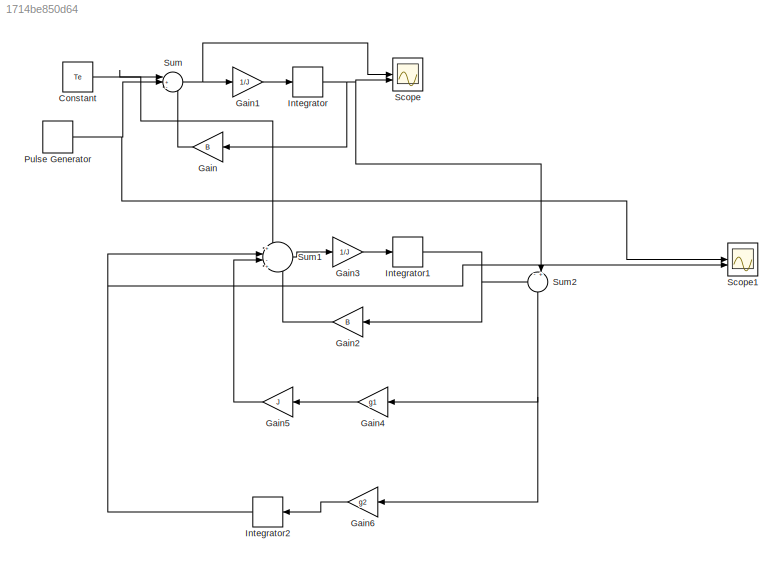
MODEL slx_1714be850d64
KIND model
CONFIG AbsTol = auto
CONFIG EnableMultiTasking = off
CONFIG FixedStep = 0.0001
CONFIG MaxStep = auto
CONFIG MinStep = auto
CONFIG RelTol = 1e-3
CONFIG SampleTimeConstraint = Unconstrained
CONFIG SolverName = FixedStepDiscrete
CONFIG StartTime = 0.0
CONFIG StopTime = 10.0
BLOCK [Constant] Constant
  Value = Te
BLOCK [Gain] Gain
  Gain = B
  NameLocation = top
BLOCK [Gain] Gain1
  Gain = 1/J
BLOCK [Gain] Gain2
  Gain = B
  NameLocation = top
BLOCK [Gain] Gain3
  Gain = 1/J
BLOCK [Gain] Gain4
  Gain = g1
  NameLocation = top
BLOCK [Gain] Gain5
  Gain = J
  NameLocation = top
BLOCK [Gain] Gain6
  Gain = g2
  NameLocation = top
BLOCK [DiscreteIntegrator] Integrator
  ICPrevOutput = DiscIntNeverNeededParam
  ICPrevScaledInput = DiscIntNeverNeededParam
  SampleTime = 0.0001
BLOCK [DiscreteIntegrator] Integrator1
  ICPrevOutput = DiscIntNeverNeededParam
  ICPrevScaledInput = DiscIntNeverNeededParam
  SampleTime = 0.0001
BLOCK [DiscreteIntegrator] Integrator2
  ICPrevOutput = DiscIntNeverNeededParam
  ICPrevScaledInput = DiscIntNeverNeededParam
  NameLocation = top
  SampleTime = 0.0001
BLOCK [DiscretePulseGenerator] Pulse Generator
  Amplitude = 0.5
  Period = 10000
  PulseWidth = 5000
  SampleTime = 0.000100000000000000005
BLOCK [Scope] Scope
  Floating = off
  NumInputPorts = 2
  ScopeSpecificationString = Simulink.scopes.TimeScopeBlockCfg('CurrentConfiguration', extmgr.ConfigurationSet(extmgr.Configuration('Core','General UI',true),extmgr.Configuration('Core','Source UI',true),extmgr.Configuration('Sources','WiredSimulink',true),extmgr.Configuration('Visuals','Time Domain',true,'SerializedDisplays',{struct('MinYLimReal','-13.0625','MaxYLimReal','112.5625','YLabelReal','','MinYLimMag','0.00000','Max...<+1401ch>
BLOCK [Scope] Scope1
  Floating = off
  NumInputPorts = 2
  ScopeSpecificationString = Simulink.scopes.TimeScopeBlockCfg('CurrentConfiguration', extmgr.ConfigurationSet(extmgr.Configuration('Core','General UI',true),extmgr.Configuration('Core','Source UI',true),extmgr.Configuration('Sources','WiredSimulink',true,'DataLoggingVariableName','ScopeData1'),extmgr.Configuration('Visuals','Time Domain',true,'SerializedDisplays',{struct('MinYLimReal','-0.0625','MaxYLimReal','0.5625','YLabel...<+1417ch>
BLOCK [Sum] Sum
  Inputs = |+--
BLOCK [Sum] Sum1
  Inputs = +|-+-
BLOCK [Sum] Sum2
  Inputs = -+|
  NameLocation = left
NET Constant:1 -> Sum1:1, Sum:1
LINE Gain1:1 -> Integrator:1
LINE Gain2:1 -> Sum1:4
LINE Gain3:1 -> Integrator1:1
LINE Gain4:1 -> Gain5:1
LINE Gain5:1 -> Sum1:3
LINE Gain6:1 -> Integrator2:1
LINE Gain:1 -> Sum:3
NET Integrator1:1 -> Gain2:1, Sum2:1
NET Integrator2:1 -> Scope1:2, Sum1:2
NET Integrator:1 -> Gain:1, Scope:2, Sum2:2
NET Pulse Generator:1 -> Scope1:1, Sum:2
LINE Sum1:1 -> Gain3:1
NET Sum2:1 -> Gain4:1, Gain6:1
NET Sum:1 -> Gain1:1, Scope:1
note: NET lines group one-source signal fan-out (src -> all destinations, sorted); 1:1 wires keep LINE
